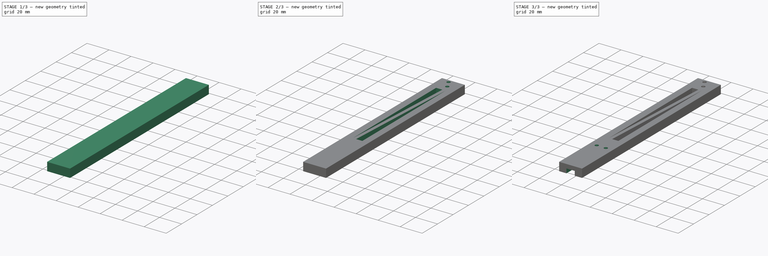
[diagram: build sequence overview — one tinted view per stage of 3, left to right]
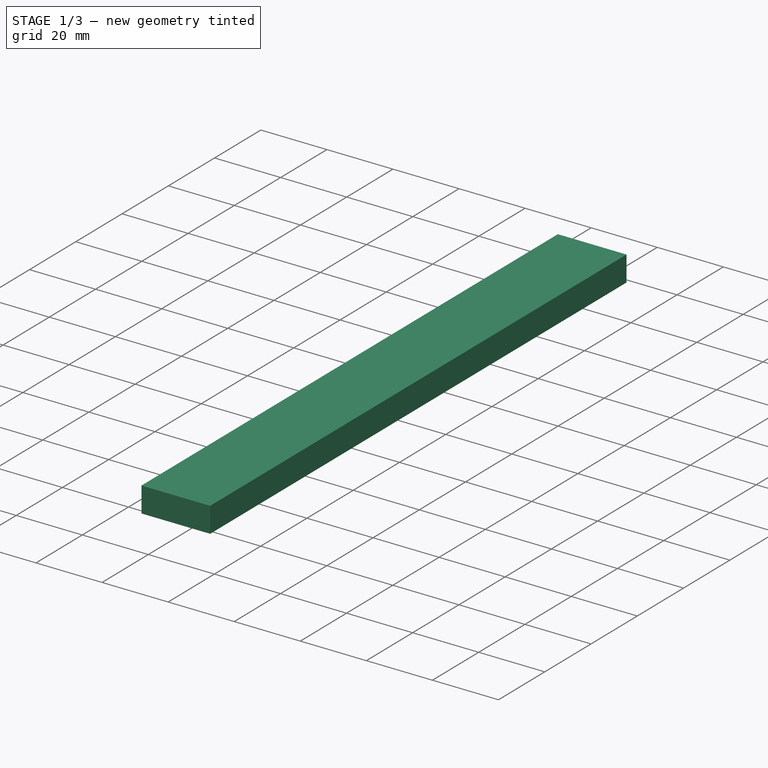
[diagram: stage 1 of 3 — iso view after this stage's code; geometry added in this stage tinted green]
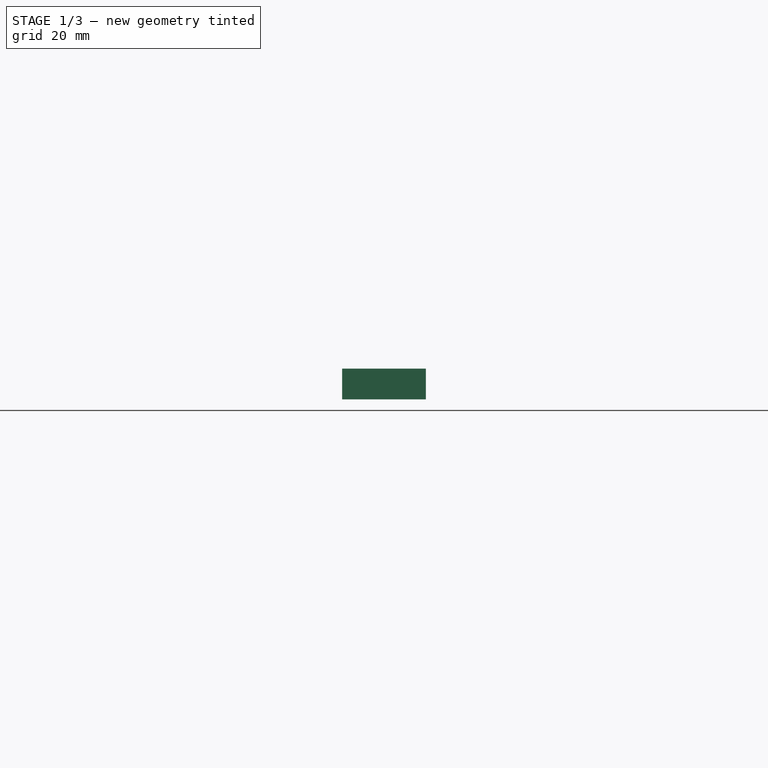
[diagram: stage 1 of 3 — front view after this stage's code; geometry added in this stage tinted green]
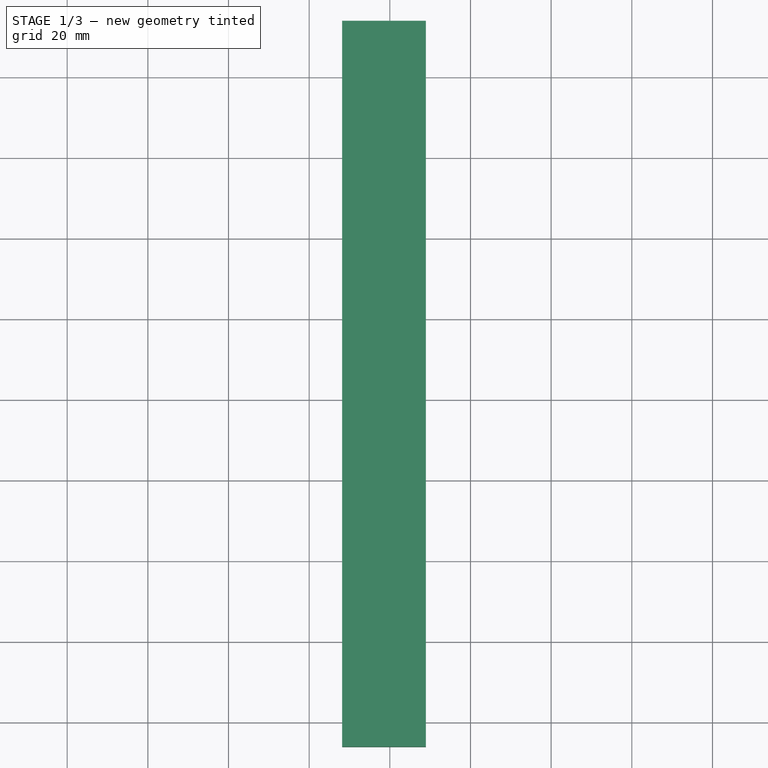
[diagram: stage 1 of 3 — top view after this stage's code; geometry added in this stage tinted green]
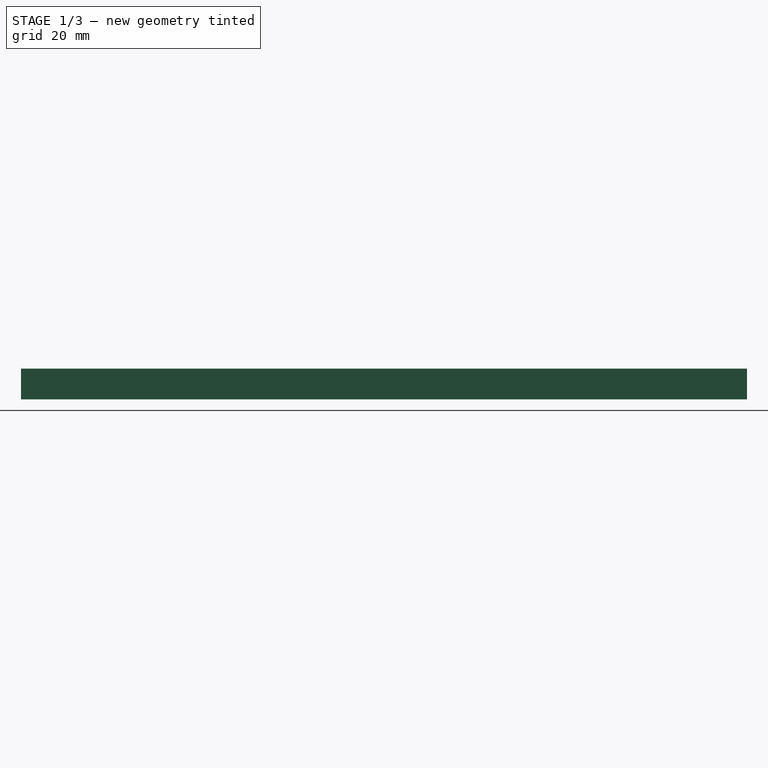
[diagram: stage 1 of 3 — right view after this stage's code; geometry added in this stage tinted green]
FCSTD DOCUMENT  (FreeCAD 0.20R29177 +426 (Git))
Label: r_long_stick
License: All rights reserved
LicenseURL: http://en.wikipedia.org/wiki/All_rights_reserved
objects: Sketcher::SketchObject×6, PartDesign::Pocket×4, Spreadsheet::Sheet×2, PartDesign::Pad×2, PartDesign::Body×1
note: 19 computed .brp shape members not serialized (recipe doc carries the construction recipe); baked Part::Feature solids carry a one-line shape summary decoded from their .brp
EXTERNAL_REF file=l_sg90_holder.FCStd obj=Sketch004
EXTERNAL_REF file=l_sg90_holder.FCStd obj=Spreadsheet
EXTERNAL_REF file=l_sg90_holder.FCStd obj=Spreadsheet001

FEATURE [Sketcher::SketchObject] Sketch
  FullyConstrained = true
  MapMode = 5
  Support = -> [XY_Plane]
  expr: .Constraints.xlen = <<l_sg90_holder>>#<<grab_tag>>.Constraints.ylen
  expr: Constraints[40] = <<l_sg90_holder>>#<<grab_tag>>.Constraints.curve_xlen + <<stick_data>>.stick_space
  expr: Constraints[42] = <<l_sg90_holder>>#<<grab_tag>>.Constraints.xlen + <<stick_data>>.stick_space
  expr: Constraints[43] = <<l_sg90_holder>>#<<grab_tag>>.Constraints.side_start_xlen
  expr: Constraints[45] = <<l_sg90_holder>>#<<grab_tag>>.Constraints.l_cir_ylen
  expr: Constraints[50] = <<stick_data>>.stick_wall_thick
  expr: Constraints[51] = <<stick_data>>.stick_full_ylen
  sketch-geometry (17):
    g0: ArcOfCircle CenterX=0 CenterY=3.95 CenterZ=0 NormalX=0 NormalY=0 NormalZ=1 AngleXU=0 Radius=3.95 StartAngle=3.14159 EndAngle=6.28319
    g1: GeomPoint X=0 Y=0 Z=0
    g2: LineSegment StartX=3.95 StartY=13.95 StartZ=0 EndX=3.95 EndY=3.95 EndZ=0
    g3: LineSegment StartX=3.95 StartY=3.95 StartZ=0 EndX=-3.95 EndY=3.95 EndZ=0
    g4: LineSegment StartX=-6.8411 StartY=9.04 StartZ=0 EndX=-3.95 EndY=3.95 EndZ=0
    g5: LineSegment StartX=-6.8411 StartY=13.95 StartZ=0 EndX=-6.8411 EndY=9.04 EndZ=0
    g6: LineSegment StartX=0 StartY=3.95 StartZ=0 EndX=0 EndY=13.95 EndZ=0
    g7: LineSegment StartX=-3.95 StartY=3.95 StartZ=0 EndX=-3.95 EndY=10.95 EndZ=0
    g8: LineSegment StartX=-3.95 StartY=13.95 StartZ=0 EndX=-3.95 EndY=10.95 EndZ=0
    g9: LineSegment StartX=-6.8411 StartY=13.95 StartZ=0 EndX=3.95 EndY=13.95 EndZ=0
    g10: LineSegment StartX=-6.8411 StartY=13.95 StartZ=0 EndX=-11.8411 EndY=13.95 EndZ=0
    g11: LineSegment StartX=-11.8411 StartY=13.95 StartZ=0 EndX=-11.8411 EndY=0 EndZ=0
    g12: LineSegment StartX=3.95 StartY=13.95 StartZ=0 EndX=8.95 EndY=13.95 EndZ=0
    g13: LineSegment StartX=8.95 StartY=13.95 StartZ=0 EndX=8.95 EndY=0 EndZ=0
    g14: LineSegment StartX=8.95 StartY=0 StartZ=0 EndX=8.95 EndY=-166.05 EndZ=0
    g15: LineSegment StartX=8.95 StartY=-166.05 StartZ=0 EndX=-11.8411 EndY=-166.05 EndZ=0
    g16: LineSegment StartX=-11.8411 StartY=-166.05 StartZ=0 EndX=-11.8411 EndY=0 EndZ=0
  constraints (52):
    c: PointOnObject(g1,g0)
    c: Coincident(g1,g-1)
    c: Coincident(g2,g0)
    c: Vertical(g2)
    c: Coincident(g3,g0)
    c: Coincident(g3,g0)
    c: Horizontal(g3)
    c: PointOnObject(g0,g3)
    c: Coincident(g4,g0)
    c: Coincident(g5,g4)
    c: Coincident(g6,g0)
    c: Vertical(g6)
    c: Coincident(g7,g0)
    c: Vertical(g7)
    c: Coincident(g8,g7)
    c: Vertical(g8)
    c: Coincident(g9,g5)
    c: Coincident(g9,g2)
    c: Horizontal(g9)
    c: PointOnObject(g8,g9)
    c: PointOnObject(g6,g-2)
    c: PointOnObject(g6,g9)
    c: Coincident(g5,g10)
    c: Horizontal(g10)
    c: Coincident(g10,g11)
    c: PointOnObject(g11,g-1)
    c: Vertical(g11)
    c: Coincident(g2,g12)
    c: Horizontal(g12)
    c: Coincident(g12,g13)
    c: PointOnObject(g13,g-1)
    c: Vertical(g13)
    c: Coincident(g13,g14)
    c: Vertical(g14)
    c: Coincident(g14,g15)
    c: Horizontal(g15)
    c: Coincident(g15,g16)
    c: Coincident(g16,g11)
    c: Vertical(g16)
    c: Equal(g12,g10)
    c: DistanceX(g3,g3) = 7.9
    c: DistanceY(g2,g2) = 10  'xlen'
    c: DistanceX(g5,g2) = 10.7911
    c: DistanceY(g5,g5) = 4.91
    c: Vertical(g5)
    c: DistanceY(g8,g8) = 3
    c: DistanceY(g11,g11) = 13.95  'top_ylen'
    c: DistanceX(g10,g6) = 11.8411  'l_xlen'
    c: DistanceX(g6,g12) = 8.95  'r_xlen'
    c: DistanceY(g16,g16) = 166.05  'bot_ylen'
    c: DistanceX(g12,g12) = 5
    c: DistanceY(g15,g10) = 180
FEATURE [Spreadsheet::Sheet] Spreadsheet  label="stick_data"
  cells = A1=Name; B1=Value; A2=stick_space; B2(stick_space)==0.4mm; A3=stick_wall_thick; B3(stick_wall_thick)==5mm; A5=stick_hole_wall_thick; B5(stick_hole_wall_thick)==4mm; A6=stick_hole_lip_height; B6(stick_hole_lip_height)==2.5mm; A8=stick_full_ylen; B8(stick_full_ylen)==180mm; A9=stick_tie_thick; B9(stick_tie_thick)==4mm
FEATURE [PartDesign::Pad] Pad
  Direction = (0,0,1)
  Length = 3
  Length2 = 10
  Profile = -> Sketch
  ReferenceAxis = -> Sketch [N_Axis]
  Type = 0
  expr: Length = <<l_sg90_holder>>#<<servo_data>>.sg90_hold_xtra_grip_thick
FEATURE [Sketcher::SketchObject] Sketch001
  AttachmentOffset = pos=(0,0,3) rot=(0,0,1;0rad)
  FullyConstrained = true
  MapMode = 5
  Placement = pos=(0,0,3) rot=(0,0,1;0rad)
  Support = -> [XY_Plane]
  expr: .AttachmentOffset.Base.z = <<Pad>>.Length
  expr: Constraints[17] = <<Sketch>>.Constraints.l_xlen
  expr: Constraints[18] = <<Sketch>>.Constraints.r_xlen
  expr: Constraints[19] = <<Sketch>>.Constraints.top_ylen
  expr: Constraints[20] = <<Sketch>>.Constraints.bot_ylen
  sketch-geometry (7):
    g0: LineSegment StartX=-11.8411 StartY=0 StartZ=0 EndX=-11.8411 EndY=13.95 EndZ=0
    g1: LineSegment StartX=-11.8411 StartY=13.95 StartZ=0 EndX=0 EndY=13.95 EndZ=0
    g2: LineSegment StartX=0 StartY=13.95 StartZ=0 EndX=8.95 EndY=13.95 EndZ=0
    g3: LineSegment StartX=8.95 StartY=13.95 StartZ=0 EndX=8.95 EndY=0 EndZ=0
    g4: LineSegment StartX=-11.8411 StartY=0 StartZ=0 EndX=-11.8411 EndY=-166.05 EndZ=0
    g5: LineSegment StartX=-11.8411 StartY=-166.05 StartZ=0 EndX=8.95 EndY=-166.05 EndZ=0
    g6: LineSegment StartX=8.95 StartY=-166.05 StartZ=0 EndX=8.95 EndY=0 EndZ=0
  constraints (21):
    c: PointOnObject(g0,g-1)
    c: Vertical(g0)
    c: Coincident(g1,g0)
    c: PointOnObject(g1,g-2)
    c: Horizontal(g1)
    c: Coincident(g2,g1)
    c: Horizontal(g2)
    c: Coincident(g3,g2)
    c: PointOnObject(g3,g-1)
    c: Vertical(g3)
    c: Coincident(g0,g4)
    c: Vertical(g4)
    c: Coincident(g4,g5)
    c: Horizontal(g5)
    c: Coincident(g5,g6)
    c: Coincident(g6,g3)
    c: Vertical(g6)
    c: DistanceX(g1,g1) = 11.8411
    c: DistanceX(g2,g2) = 8.95
    c: DistanceY(g0,g0) = 13.95
    c: DistanceY(g4,g4) = 166.05
FEATURE [PartDesign::Pad] Pad001
  BaseFeature = -> Pad
  Direction = (0,0,1)
  Length = 4.65
  Length2 = 10
  Profile = -> Sketch001
  ReferenceAxis = -> Sketch001 [N_Axis]
  Type = 0
  expr: Length = <<l_sg90_holder>>#<<servo_data>>.sg90_base_zlen / 2 + <<l_sg90_holder>>#<<servo_data>>.sg90_hold_base_wall_thick - <<Pad>>.Length
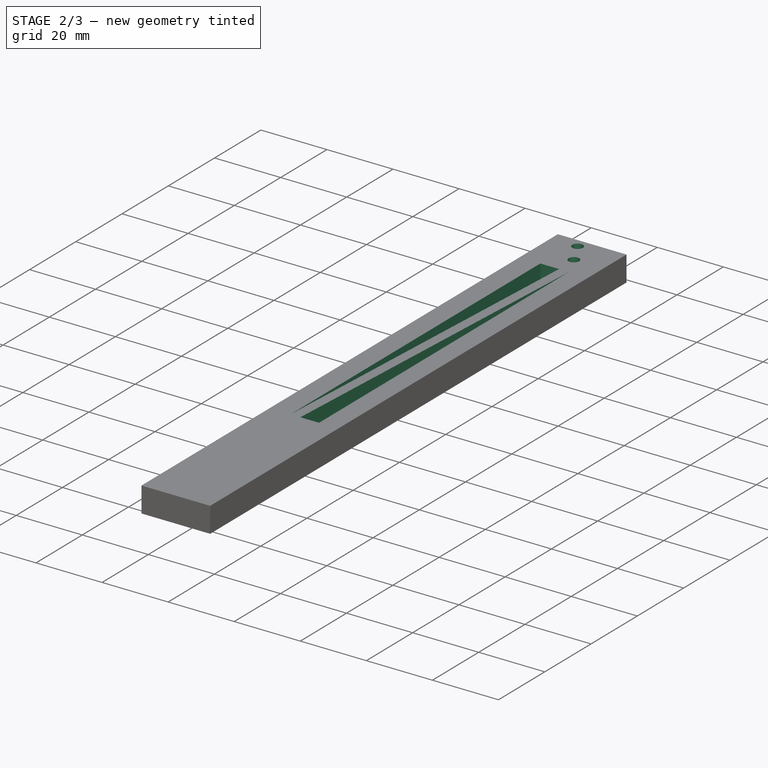
[diagram: stage 2 of 3 — iso view after this stage's code; geometry added in this stage tinted green]
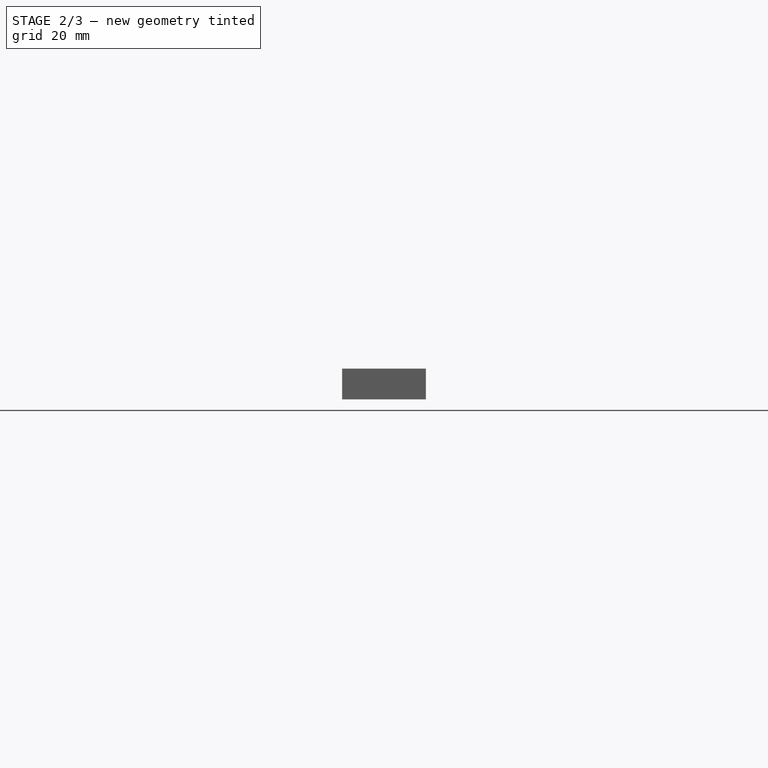
[diagram: stage 2 of 3 — front view after this stage's code; geometry added in this stage tinted green]
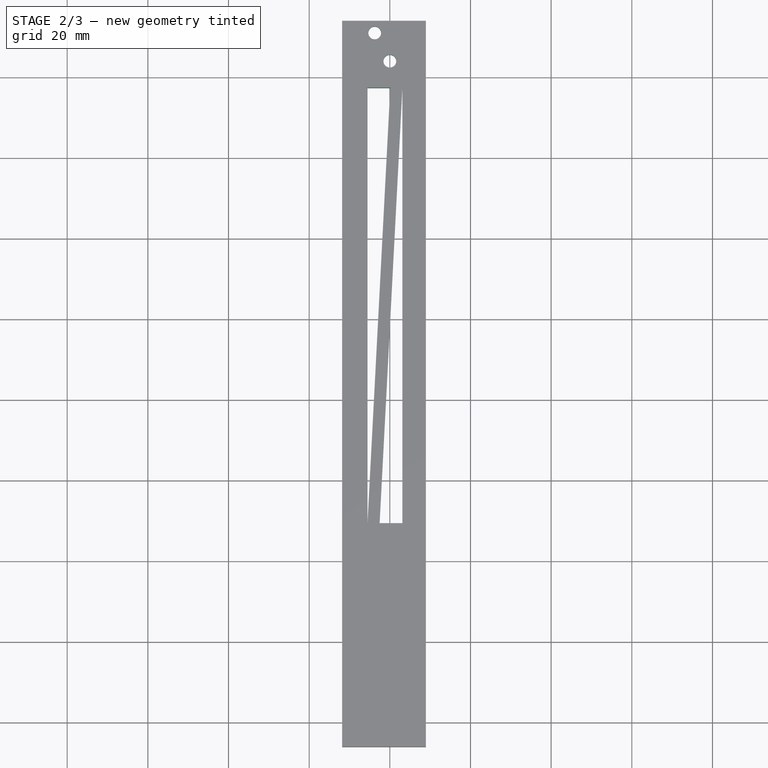
[diagram: stage 2 of 3 — top view after this stage's code; geometry added in this stage tinted green]
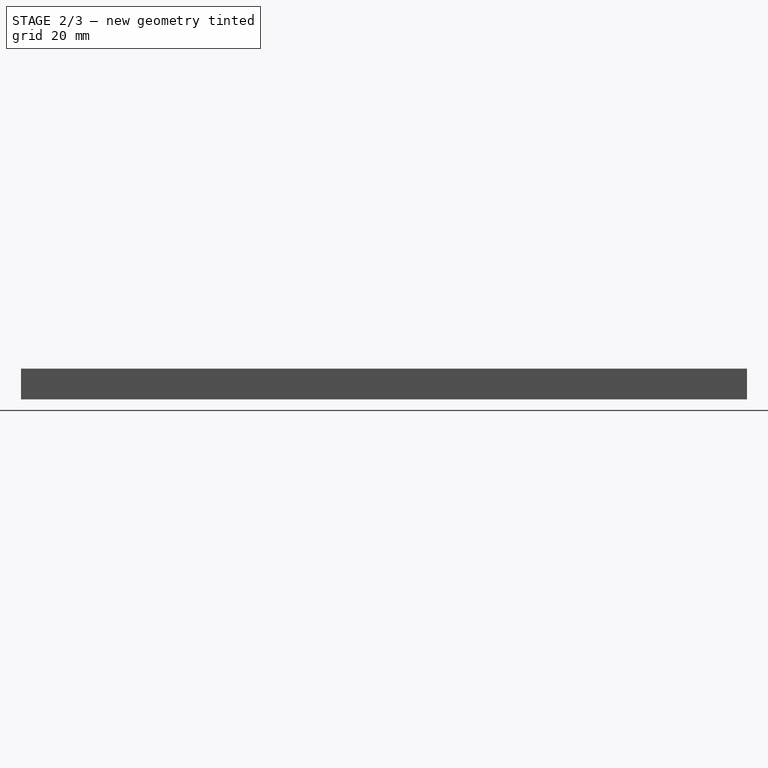
[diagram: stage 2 of 3 — right view after this stage's code; geometry added in this stage tinted green]
FEATURE [Sketcher::SketchObject] Sketch002
  AttachmentOffset = pos=(0,0.2,0) rot=(0,0,1;0rad)
  FullyConstrained = true
  MapMode = 5
  Placement = pos=(0,0.2,0) rot=(0,0,1;0rad)
  Support = -> [XY_Plane]
  expr: .AttachmentOffset.Base.y = <<stick_data>>.stick_space / 2
  expr: .AttachmentOffset.Base.z = 0
  expr: Constraints[21] = <<l_sg90_holder>>#<<grab_tag>>.Constraints.curve_xlen
  expr: Constraints[22] = <<l_sg90_holder>>#<<grab_tag>>.Constraints.ylen
  expr: Constraints[23] = <<l_sg90_holder>>#<<grab_tag>>.Constraints.side_start_xlen
  expr: Constraints[24] = <<l_sg90_holder>>#<<grab_tag>>.Constraints.l_cir_ylen
  expr: Constraints[25] = <<l_sg90_holder>>#<<grab_tag>>.Constraints.xlen
  expr: Constraints[29] = <<l_sg90_holder>>#<<grab_tag>>.Constraints.dia
  sketch-geometry (11):
    g0: ArcOfCircle CenterX=0 CenterY=3.75 CenterZ=0 NormalX=0 NormalY=0 NormalZ=1 AngleXU=0 Radius=3.75 StartAngle=3.14159 EndAngle=6.28319
    g1: LineSegment StartX=-3.75 StartY=3.75 StartZ=0 EndX=3.75 EndY=3.75 EndZ=0
    g2: LineSegment StartX=0 StartY=0 StartZ=0 EndX=0 EndY=3.75 EndZ=0
    g3: LineSegment StartX=3.75 StartY=13.75 StartZ=0 EndX=3.75 EndY=3.75 EndZ=0
    g4: LineSegment StartX=3.75 StartY=13.75 StartZ=0 EndX=-6.6411 EndY=13.75 EndZ=0
    g5: LineSegment StartX=-6.6411 StartY=13.75 StartZ=0 EndX=-6.6411 EndY=8.84 EndZ=0
    g6: LineSegment StartX=-6.6411 StartY=8.84 StartZ=0 EndX=-3.75 EndY=3.75 EndZ=0
    g7: LineSegment StartX=-3.75 StartY=3.75 StartZ=0 EndX=-3.75 EndY=10.75 EndZ=0
    g8: LineSegment StartX=-3.75 StartY=10.75 StartZ=0 EndX=-3.75 EndY=13.75 EndZ=0
    g9: Circle CenterX=0 CenterY=3.75 CenterZ=0 NormalX=0 NormalY=0 NormalZ=1 AngleXU=0 Radius=1.58
    g10: Circle CenterX=-3.75 CenterY=10.75 CenterZ=0 NormalX=0 NormalY=0 NormalZ=1 AngleXU=0 Radius=1.58
  constraints (30):
    c: PointOnObject(g0,g-2)
    c: Coincident(g1,g0)
    c: Coincident(g1,g0)
    c: Horizontal(g1)
    c: PointOnObject(g0,g1)
    c: PointOnObject(g-1,g0)
    c: Coincident(g2,g-1)
    c: Coincident(g2,g0)
    c: Coincident(g3,g0)
    c: Vertical(g3)
    c: Coincident(g3,g4)
    c: Horizontal(g4)
    c: Coincident(g4,g5)
    c: Vertical(g5)
    c: Coincident(g5,g6)
    c: Coincident(g6,g0)
    c: Coincident(g6,g7)
    c: Vertical(g7)
    c: Coincident(g7,g8)
    c: PointOnObject(g8,g4)
    c: Vertical(g8)
    c: DistanceX(g1,g1) = 7.5
    c: DistanceY(g3,g3) = 10
    c: DistanceY(g5,g5) = 4.91
    c: DistanceY(g8,g8) = 3
    c: DistanceX(g4,g4) = 10.3911
    c: Coincident(g9,g0)
    c: Coincident(g10,g7)
    c: Equal(g10,g9)
    c: Diameter(g9) = 3.16
FEATURE [PartDesign::Pocket] Pocket
  BaseFeature = -> Pad001
  Direction = (0,0,-1)
  Length = 5
  Length2 = 5
  Midplane = true
  Profile = -> Sketch002
  ReferenceAxis = -> Sketch002 [N_Axis]
  Type = 1
FEATURE [Spreadsheet::Sheet] Spreadsheet001  label="pgb_data"
  cells = A1=Name; B1=Value; A2=pbg_len; B2(pbg_len)==23.2cm
FEATURE [Sketcher::SketchObject] Sketch003
  FullyConstrained = true
  MapMode = 5
  Support = -> [XY_Plane]
  expr: Constraints[21] = <<stick_data>>.stick_full_ylen * 0.6
  sketch-geometry (8):
    g0: LineSegment StartX=0.11 StartY=-2.63 StartZ=0 EndX=-5.54 EndY=-2.63 EndZ=0
    g1: LineSegment StartX=-5.54 StartY=-2.63 StartZ=0 EndX=-5.54 EndY=-110.63 EndZ=0
    g2: LineSegment StartX=-5.54 StartY=-110.63 StartZ=0 EndX=0.11 EndY=-2.63 EndZ=0
    g3: LineSegment StartX=-2.54 StartY=-110.63 StartZ=0 EndX=3.11 EndY=-110.63 EndZ=0
    g4: LineSegment StartX=3.11 StartY=-110.63 StartZ=0 EndX=3.11 EndY=-2.63 EndZ=0
    g5: LineSegment StartX=3.11 StartY=-2.63 StartZ=0 EndX=-2.54 EndY=-110.63 EndZ=0
    g6: LineSegment StartX=0.11 StartY=-2.63 StartZ=0 EndX=3.11 EndY=-2.63 EndZ=0
    g7: LineSegment StartX=-2.54 StartY=-110.63 StartZ=0 EndX=-5.54 EndY=-110.63 EndZ=0
  constraints (22):
    c: Horizontal(g0)
    c: Coincident(g0,g1)
    c: Vertical(g1)
    c: Coincident(g1,g2)
    c: Coincident(g2,g0)
    c: Horizontal(g3)
    c: Coincident(g3,g4)
    c: Vertical(g4)
    c: Coincident(g4,g5)
    c: Coincident(g5,g3)
    c: Coincident(g6,g0)
    c: Coincident(g6,g4)
    c: Horizontal(g6)
    c: Coincident(g7,g3)
    c: Coincident(g7,g1)
    c: Horizontal(g7)
    c: Equal(g3,g0)
    c: DistanceX(g6,g6) = 3
    c: DistanceX(g0,g0) = 5.65
    c: DistanceX(g-1,g0) = 0.11
    c: DistanceY(g0,g-1) = 2.63
    c: DistanceY(g1,g1) = 108
FEATURE [PartDesign::Pocket] Pocket001
  BaseFeature = -> Pocket
  Direction = (0,0,-1)
  Length = 5
  Length2 = 5
  Midplane = true
  Profile = -> Sketch003
  ReferenceAxis = -> Sketch003 [N_Axis]
  Type = 1
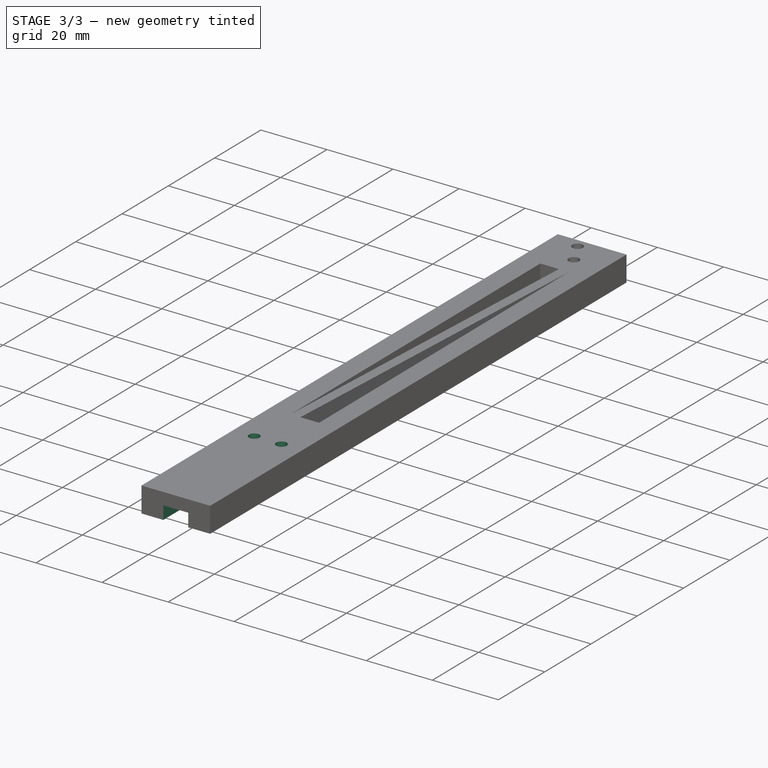
[diagram: stage 3 of 3 — iso view after this stage's code; geometry added in this stage tinted green]
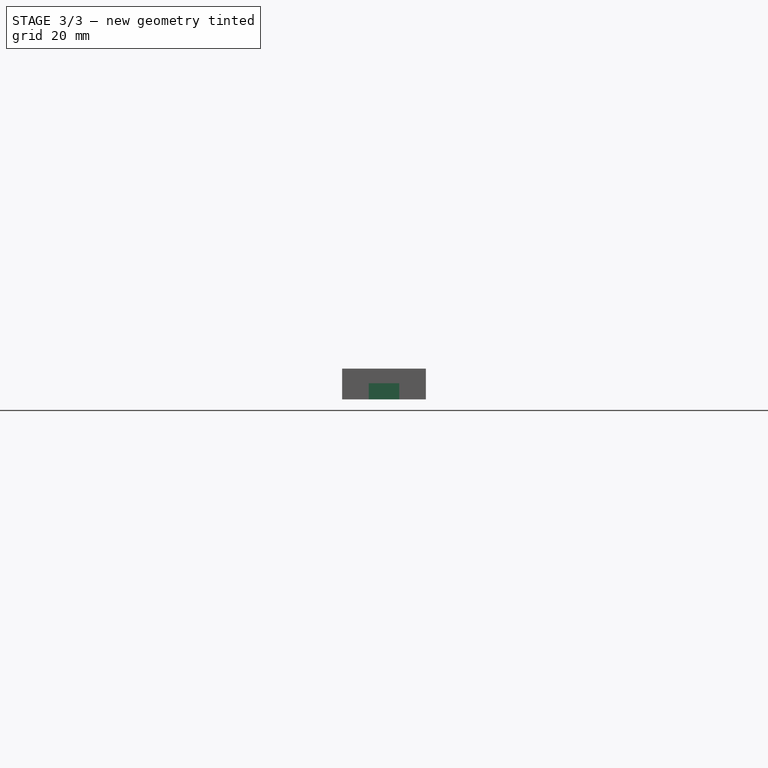
[diagram: stage 3 of 3 — front view after this stage's code; geometry added in this stage tinted green]
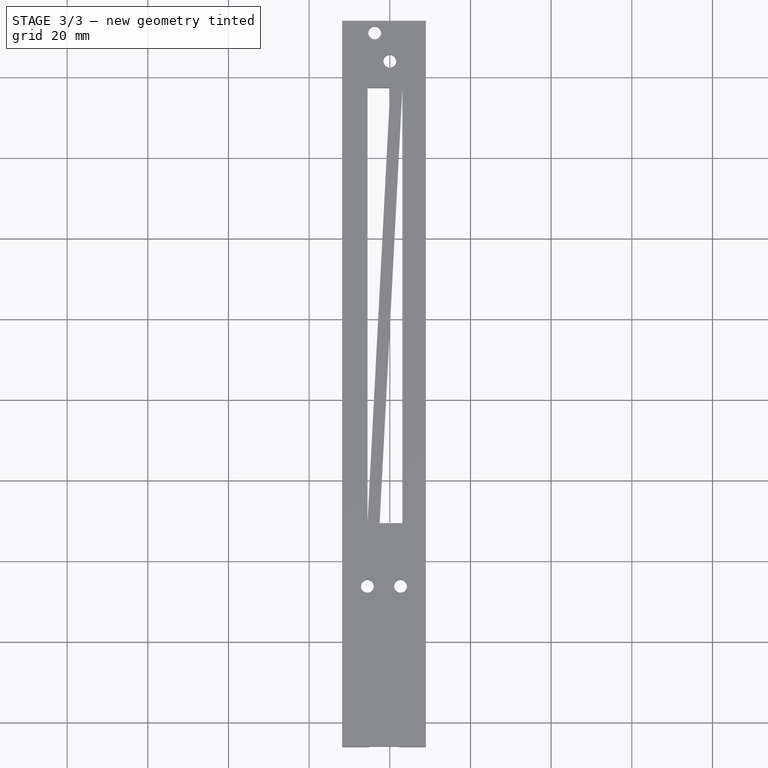
[diagram: stage 3 of 3 — top view after this stage's code; geometry added in this stage tinted green]
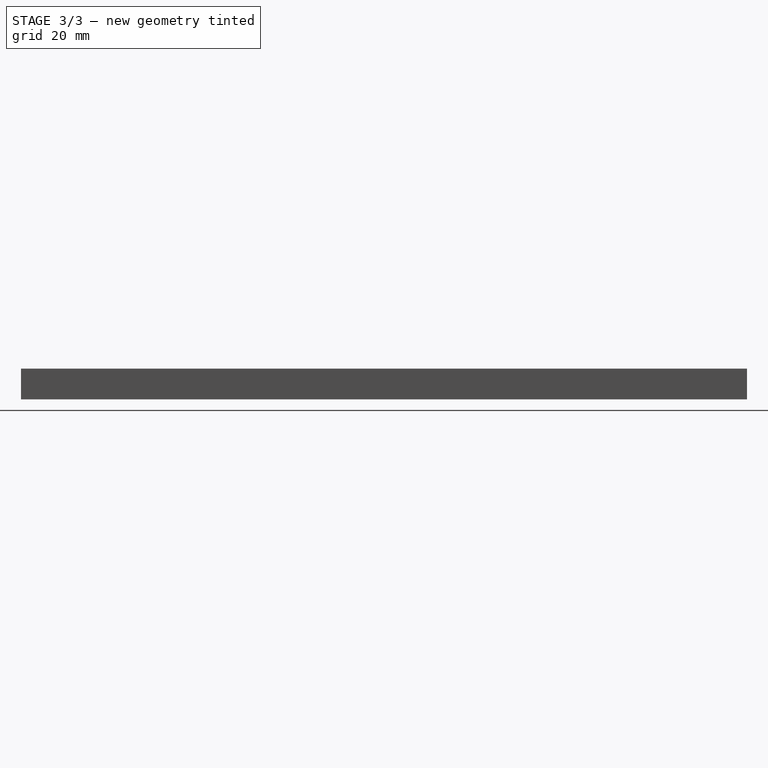
[diagram: stage 3 of 3 — right view after this stage's code; geometry added in this stage tinted green]
FEATURE [Sketcher::SketchObject] Sketch004
  FullyConstrained = true
  MapMode = 5
  Support = -> [XY_Plane]
  expr: .AttachmentOffset.Base.z = 0
  expr: Constraints[14] = <<Sketch>>.Constraints.l_xlen
  expr: Constraints[15] = <<Sketch>>.Constraints.r_xlen
  expr: Constraints[16] = <<Sketch>>.Constraints.bot_ylen
  expr: Constraints[51] = <<l_sg90_holder>>#<<screw_data>>.m3_screw_dia + <<l_sg90_holder>>#<<screw_data>>.m3_space + <<stick_data>>.stick_hole_wall_thick + <<stick_data>>.stick_space
  expr: Constraints[59] = <<l_sg90_holder>>#<<screw_data>>.m3_screw_dia + <<l_sg90_holder>>#<<screw_data>>.m3_space
  expr: Constraints[69] = <<stick_data>>.stick_hole_lip_height
  expr: Constraints[70] = <<stick_data>>.stick_full_ylen * 0.2
  sketch-geometry (25):
    g0: LineSegment StartX=0 StartY=0 StartZ=0 EndX=-11.8411 EndY=0 EndZ=0
    g1: LineSegment StartX=0 StartY=0 StartZ=0 EndX=8.95 EndY=0 EndZ=0
    g2: LineSegment StartX=8.95 StartY=0 StartZ=0 EndX=8.95 EndY=-166.05 EndZ=0
    g3: LineSegment StartX=8.95 StartY=-166.05 StartZ=0 EndX=-1.44555 EndY=-166.05 EndZ=0
    g4: LineSegment StartX=-1.44555 StartY=-166.05 StartZ=0 EndX=-11.8411 EndY=-166.05 EndZ=0
    g5: LineSegment StartX=-11.8411 StartY=-166.05 StartZ=0 EndX=-11.8411 EndY=0 EndZ=0
    g6: LineSegment StartX=-1.44555 StartY=-166.05 StartZ=0 EndX=-1.44555 EndY=0 EndZ=0
    g7: LineSegment StartX=-5.22555 StartY=-130.05 StartZ=0 EndX=-5.22555 EndY=-166.05 EndZ=0
    g8: LineSegment StartX=-5.22555 StartY=-166.05 StartZ=0 EndX=2.33445 EndY=-166.05 EndZ=0
    g9: LineSegment StartX=2.33445 StartY=-166.05 StartZ=0 EndX=2.33445 EndY=-130.05 EndZ=0
    g10: GeomPoint X=-1.44555 Y=-148.05 Z=0
    g11: LineSegment StartX=-5.22555 StartY=-130.05 StartZ=0 EndX=-5.5611 EndY=-130.05 EndZ=0
    g12: LineSegment StartX=2.33445 StartY=-130.05 StartZ=0 EndX=2.67 EndY=-130.05 EndZ=0
    g13: ArcOfCircle CenterX=-5.5611 CenterY=-126.27 CenterZ=0 NormalX=0 NormalY=0 NormalZ=1 AngleXU=0 Radius=3.78 StartAngle=1.5708 EndAngle=4.71239
    g14: ArcOfCircle CenterX=2.67 CenterY=-126.27 CenterZ=0 NormalX=0 NormalY=0 NormalZ=1 AngleXU=0 Radius=3.78 StartAngle=4.71239 EndAngle=7.85398
    g15: LineSegment StartX=-5.5611 StartY=-122.49 StartZ=0 EndX=2.67 EndY=-122.49 EndZ=0
    g16: LineSegment StartX=-5.5611 StartY=-122.49 StartZ=0 EndX=-5.5611 EndY=-130.05 EndZ=0
    g17: LineSegment StartX=2.67 StartY=-122.49 StartZ=0 EndX=2.67 EndY=-130.05 EndZ=0
    g18: LineSegment StartX=-5.22555 StartY=-130.05 StartZ=0 EndX=2.33445 EndY=-130.05 EndZ=0
    g19: Circle CenterX=-5.5611 CenterY=-126.27 CenterZ=0 NormalX=0 NormalY=0 NormalZ=1 AngleXU=0 Radius=1.58
    g20: Circle CenterX=2.67 CenterY=-126.27 CenterZ=0 NormalX=0 NormalY=0 NormalZ=1 AngleXU=0 Radius=1.58
    g21: LineSegment StartX=-5.5611 StartY=-126.27 StartZ=0 EndX=-9.3411 EndY=-126.27 EndZ=0
    g22: LineSegment StartX=-9.3411 StartY=-126.27 StartZ=0 EndX=-11.8411 EndY=-126.27 EndZ=0
    g23: LineSegment StartX=-5.5611 StartY=-126.27 StartZ=0 EndX=0 EndY=-126.27 EndZ=0
    g24: LineSegment StartX=0 StartY=-126.27 StartZ=0 EndX=2.67 EndY=-126.27 EndZ=0
  constraints (71):
    c: Coincident(g0,g-1)
    c: PointOnObject(g0,g-1)
    c: Coincident(g1,g0)
    c: PointOnObject(g1,g-1)
    c: Coincident(g1,g2)
    c: Vertical(g2)
    c: Coincident(g2,g3)
    c: Horizontal(g3)
    c: Coincident(g3,g4)
    c: Horizontal(g4)
    c: Coincident(g4,g5)
    c: Coincident(g5,g0)
    c: Vertical(g5)
    c: Equal(g4,g3)
    c: DistanceX(g0,g0) = 11.8411
    c: DistanceX(g1,g1) = 8.95
    c: DistanceY(g5,g5) = 166.05
    c: Coincident(g6,g3)
    c: PointOnObject(g6,g0)
    c: Vertical(g6)
    c: Coincident(g7,g8)
    c: Coincident(g8,g9)
    c: Horizontal(g8)
    c: Vertical(g7)
    c: Vertical(g9)
    c: Symmetric(g8,g7,g10)
    c: PointOnObject(g10,g6)
    c: PointOnObject(g8,g3)
    c: Coincident(g7,g11)
    c: Horizontal(g11)
    c: Coincident(g9,g12)
    c: Horizontal(g12)
    c: Coincident(g13,g11)
    c: Coincident(g14,g12)
    c: Coincident(g15,g13)
    c: Coincident(g15,g14)
    c: Horizontal(g15)
    c: Equal(g12,g11)
    c: Coincident(g16,g13)
    c: Coincident(g16,g11)
    c: Coincident(g17,g14)
    c: Coincident(g17,g12)
    c: Vertical(g17)
    c: Vertical(g16)
    c: PointOnObject(g13,g16)
    c: PointOnObject(g14,g17)
    c: Coincident(g18,g7)
    c: Coincident(g18,g9)
    c: Horizontal(g18)
    c: Coincident(g19,g13)
    c: Coincident(g20,g14)
    c: DistanceY(g17,g17) = 7.56
    c: Equal(g18,g16)
    c: Coincident(g21,g13)
    c: PointOnObject(g21,g13)
    c: Horizontal(g21)
    c: Coincident(g22,g21)
    c: PointOnObject(g22,g5)
    c: Horizontal(g22)
    c: Diameter(g19) = 3.16
    c: Equal(g20,g19)
    c: Coincident(g23,g13)
    c: PointOnObject(g23,g-2)
    c: Horizontal(g23)
    c: Coincident(g23,g24)
    c: Coincident(g24,g14)
    c: DistanceY(g23,g0) = 126.27  'm3_ylen'
    c: DistanceX(g23,g23) = 5.5611  'm3_l_xlen'
    c: DistanceX(g24,g24) = 2.67  'm3_r_xlen'
    c: DistanceX(g22,g22) = 2.5
    c: DistanceY(g7,g7) = 36
FEATURE [PartDesign::Pocket] Pocket002
  BaseFeature = -> Pocket001
  Direction = (0,0,-1)
  Length = 4
  Length2 = 5
  Profile = -> Sketch004
  ReferenceAxis = -> Sketch004 [N_Axis]
  Reversed = true
  Type = 0
  expr: Length = <<stick_data>>.stick_tie_thick
FEATURE [Sketcher::SketchObject] Sketch005
  FullyConstrained = true
  MapMode = 5
  Support = -> [XY_Plane]
  expr: Constraints[10] = Sketch004.Constraints.m3_r_xlen
  expr: Constraints[11] = Sketch004.Constraints.m3_ylen
  expr: Constraints[12] = <<l_sg90_holder>>#<<screw_data>>.m3_screw_dia + <<l_sg90_holder>>#<<screw_data>>.m3_space
  expr: Constraints[9] = Sketch004.Constraints.m3_l_xlen
  sketch-geometry (5):
    g0: LineSegment StartX=0 StartY=0 StartZ=0 EndX=0 EndY=-126.27 EndZ=0
    g1: LineSegment StartX=0 StartY=-126.27 StartZ=0 EndX=-5.5611 EndY=-126.27 EndZ=0
    g2: LineSegment StartX=0 StartY=-126.27 StartZ=0 EndX=2.67 EndY=-126.27 EndZ=0
    g3: Circle CenterX=-5.5611 CenterY=-126.27 CenterZ=0 NormalX=0 NormalY=0 NormalZ=1 AngleXU=0 Radius=1.58
    g4: Circle CenterX=2.67 CenterY=-126.27 CenterZ=0 NormalX=0 NormalY=0 NormalZ=1 AngleXU=0 Radius=1.58
  constraints (13):
    c: Coincident(g0,g-1)
    c: PointOnObject(g0,g-2)
    c: Coincident(g1,g0)
    c: Horizontal(g1)
    c: Coincident(g2,g0)
    c: Horizontal(g2)
    c: Coincident(g3,g1)
    c: Coincident(g4,g2)
    c: Equal(g4,g3)
    c: DistanceX(g1,g1) = 5.5611
    c: DistanceX(g2,g2) = 2.67
    c: DistanceY(g0,g0) = 126.27
    c: Diameter(g3) = 3.16
FEATURE [PartDesign::Pocket] Pocket003
  BaseFeature = -> Pocket002
  Direction = (0,0,-1)
  Length = 5
  Length2 = 5
  Midplane = true
  Profile = -> Sketch005
  ReferenceAxis = -> Sketch005 [N_Axis]
  Type = 1
FEATURE [PartDesign::Body] Body
  Group = -> [Sketch,Pad,Sketch001,Pad001,Sketch002,Pocket,Sketch003,Pocket001,Sketch004,Pocket002,Sketch005,Pocket003]
  Origin = -> Origin
  Tip = -> Pocket003
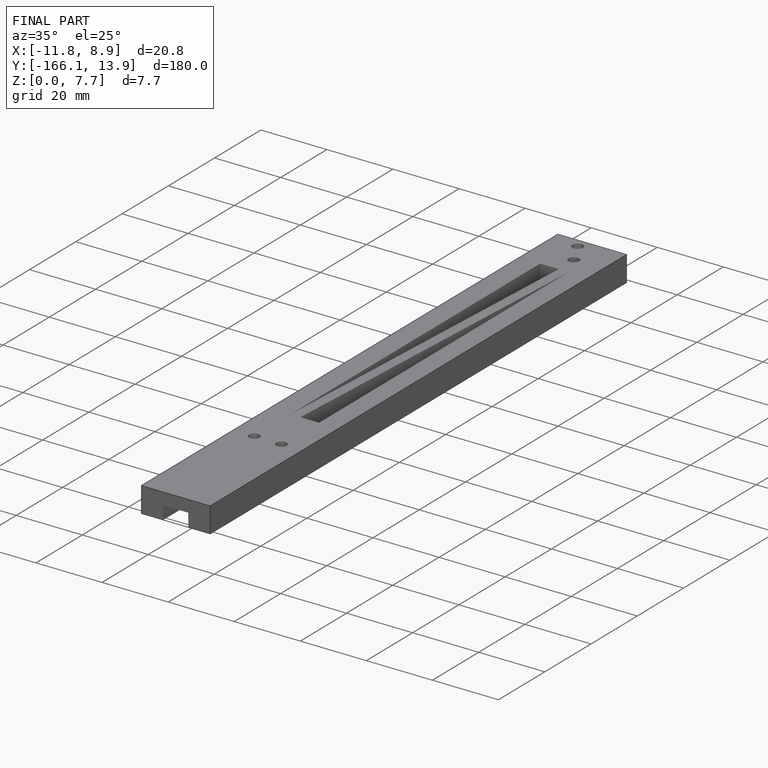
[diagram: finished part — iso view with bounding-box wireframe]
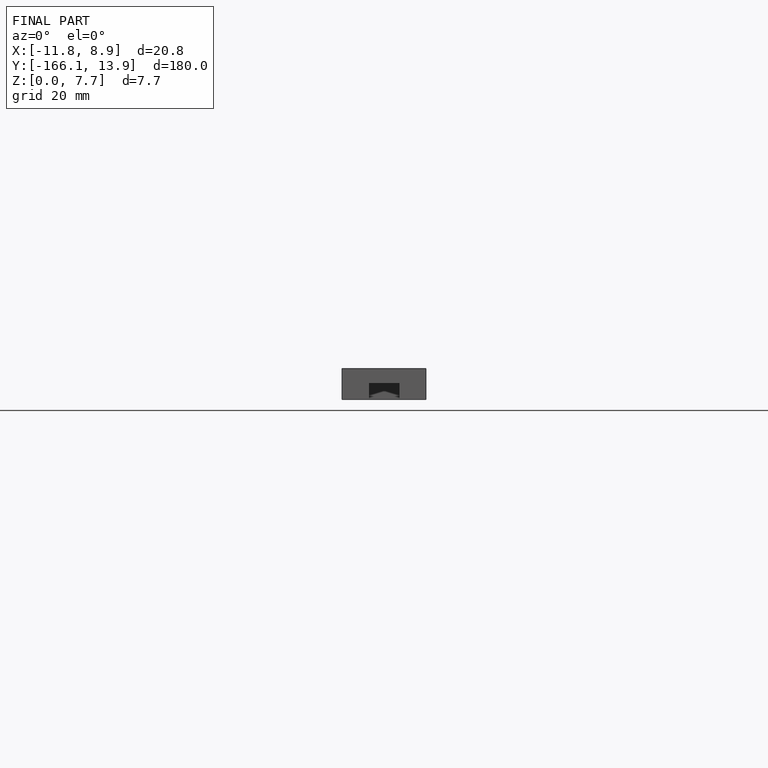
[diagram: finished part — front view with bounding-box wireframe]
